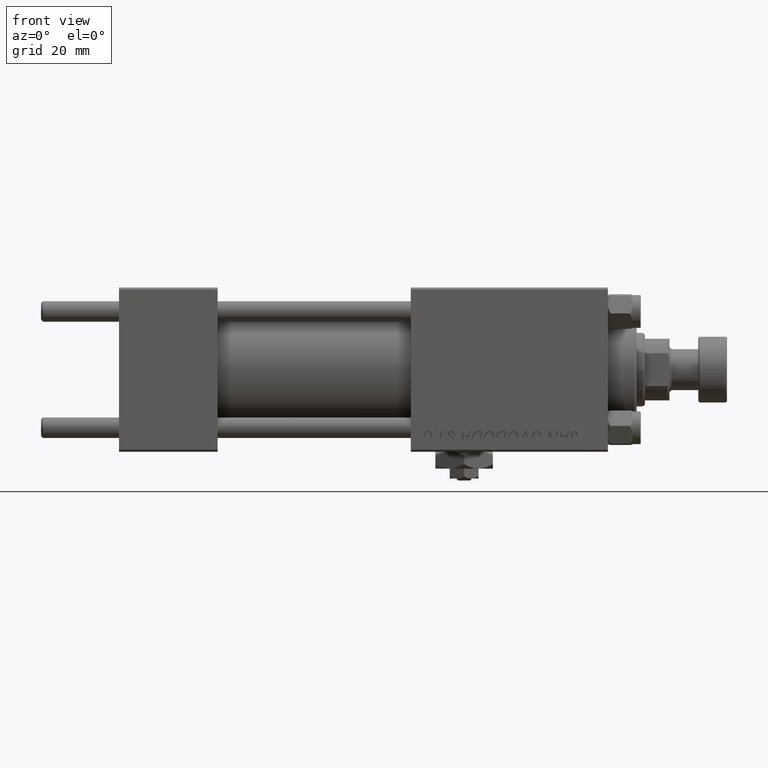
[diagram: clean part render]
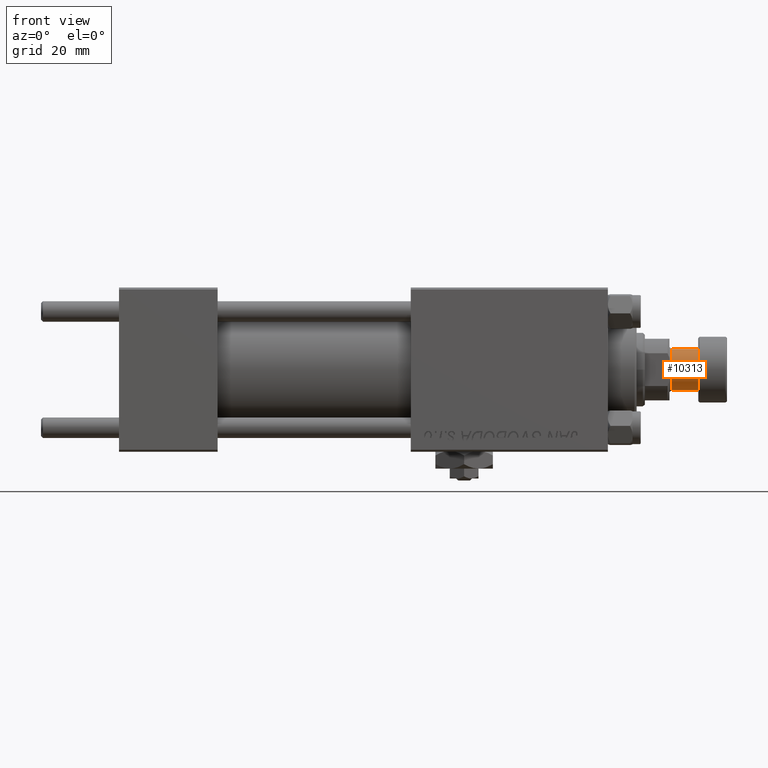
[diagram: same view with one face highlighted and labeled with its STEP entity id]
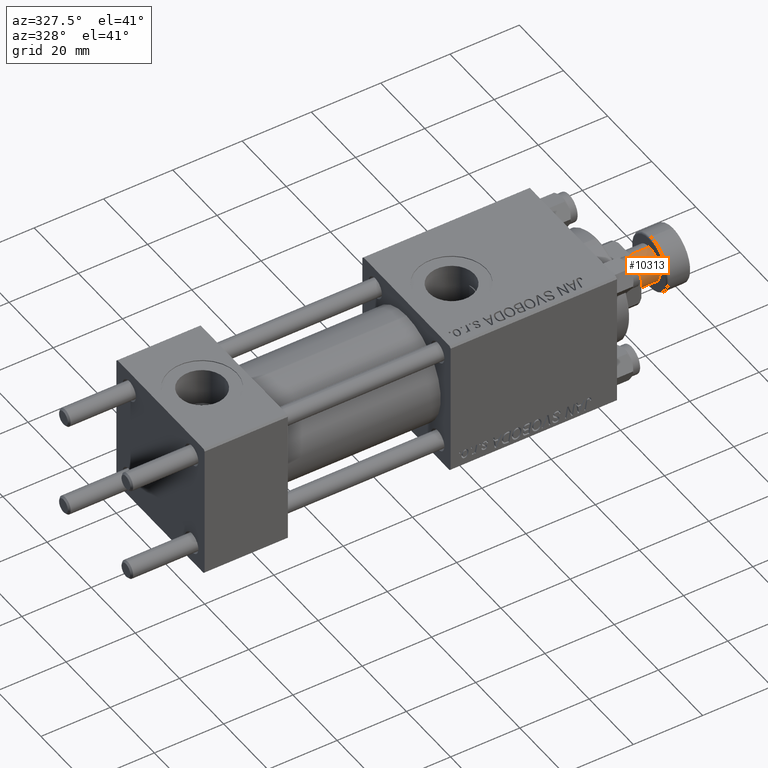
[diagram: same view with one face highlighted and labeled with its STEP entity id]
A machine part, front view. The second image highlights one B-rep face of the part: STEP entity #10313.
A second angle (auxiliary view) of the same face is appended — the face is thin or edge-on in the first view.
In plain terms, the highlighted cylindrical surface (edge-blend (fillet) strip) has radius 5 mm, axis along (1, 0, 0).
Its self-contained STEP definition (entity closure, byte-faithful):
#447 = CARTESIAN_POINT ( 'NONE',  ( 0.000000000000000000, 0.000000000000000000, -13.50000000000000000 ) ) ;
#1996 = DIRECTION ( 'NONE',  ( 0.000000000000000000, 0.000000000000000000, -1.000000000000000000 ) ) ;
#2539 = ORIENTED_EDGE ( 'NONE', *, *, #51309, .T. ) ;
#5540 = VERTEX_POINT ( 'NONE', #33681 ) ;
#5706 = AXIS2_PLACEMENT_3D ( 'NONE', #447, #8352, #20701 ) ;
#6856 = ORIENTED_EDGE ( 'NONE', *, *, #39827, .F. ) ;
#7539 = LINE ( 'NONE', #26292, #29527 ) ;
#8193 = EDGE_CURVE ( 'NONE', #5540, #16245, #19628, .T. ) ;
#8352 = DIRECTION ( 'NONE',  ( 0.000000000000000000, 0.000000000000000000, -1.000000000000000000 ) ) ;
#10313 = ADVANCED_FACE ( 'NONE', ( #27357 ), #11840, .T. ) ;
#10678 = DIRECTION ( 'NONE',  ( -1.000000000000000000, 0.000000000000000000, 0.000000000000000000 ) ) ;
#10795 = CIRCLE ( 'NONE', #5706, 5.000000000000000000 ) ;
#11840 = CYLINDRICAL_SURFACE ( 'NONE', #12973, 5.000000000000000000 ) ;
#12973 = AXIS2_PLACEMENT_3D ( 'NONE', #27612, #51809, #24446 ) ;
#15148 = ORIENTED_EDGE ( 'NONE', *, *, #40064, .F. ) ;
#16128 = CARTESIAN_POINT ( 'NONE',  ( -5.000000000000000000, 6.123233995736765296E-16, -7.000000000000000000 ) ) ;
#16245 = VERTEX_POINT ( 'NONE', #16128 ) ;
#16953 = DIRECTION ( 'NONE',  ( -0.000000000000000000, -0.000000000000000000, 1.000000000000000000 ) ) ;
#18673 = VERTEX_POINT ( 'NONE', #18771 ) ;
#18752 = EDGE_LOOP ( 'NONE', ( #15148, #6856, #2539, #49298 ) ) ;
#18771 = CARTESIAN_POINT ( 'NONE',  ( -5.000000000000000000, 6.123233995736765296E-16, -13.50000000000000000 ) ) ;
#19628 = CIRCLE ( 'NONE', #43156, 5.000000000000000000 ) ;
#20701 = DIRECTION ( 'NONE',  ( -1.000000000000000000, 0.000000000000000000, 0.000000000000000000 ) ) ;
#22349 = DIRECTION ( 'NONE',  ( -0.000000000000000000, -0.000000000000000000, 1.000000000000000000 ) ) ;
#24339 = LINE ( 'NONE', #48264, #26732 ) ;
#24446 = DIRECTION ( 'NONE',  ( 1.000000000000000000, 0.000000000000000000, 0.000000000000000000 ) ) ;
#25642 = CARTESIAN_POINT ( 'NONE',  ( 0.000000000000000000, 0.000000000000000000, -7.000000000000000000 ) ) ;
#26292 = CARTESIAN_POINT ( 'NONE',  ( 5.000000000000000000, 0.000000000000000000, -13.50000000000000000 ) ) ;
#26732 = VECTOR ( 'NONE', #16953, 1000.000000000000000 ) ;
#27357 = FACE_OUTER_BOUND ( 'NONE', #18752, .T. ) ;
#27612 = CARTESIAN_POINT ( 'NONE',  ( 0.000000000000000000, 0.000000000000000000, -13.50000000000000000 ) ) ;
#28585 = CARTESIAN_POINT ( 'NONE',  ( 5.000000000000000000, 0.000000000000000000, -13.50000000000000000 ) ) ;
#29527 = VECTOR ( 'NONE', #22349, 1000.000000000000000 ) ;
#33681 = CARTESIAN_POINT ( 'NONE',  ( 5.000000000000000000, 0.000000000000000000, -7.000000000000000000 ) ) ;
#39827 = EDGE_CURVE ( 'NONE', #46638, #18673, #10795, .T. ) ;
#40064 = EDGE_CURVE ( 'NONE', #18673, #16245, #24339, .T. ) ;
#43156 = AXIS2_PLACEMENT_3D ( 'NONE', #25642, #1996, #10678 ) ;
#46638 = VERTEX_POINT ( 'NONE', #28585 ) ;
#48264 = CARTESIAN_POINT ( 'NONE',  ( -5.000000000000000000, 6.123233995736765296E-16, -13.50000000000000000 ) ) ;
#49298 = ORIENTED_EDGE ( 'NONE', *, *, #8193, .T. ) ;
#51309 = EDGE_CURVE ( 'NONE', #46638, #5540, #7539, .T. ) ;
#51809 = DIRECTION ( 'NONE',  ( -0.000000000000000000, -0.000000000000000000, 1.000000000000000000 ) ) ;